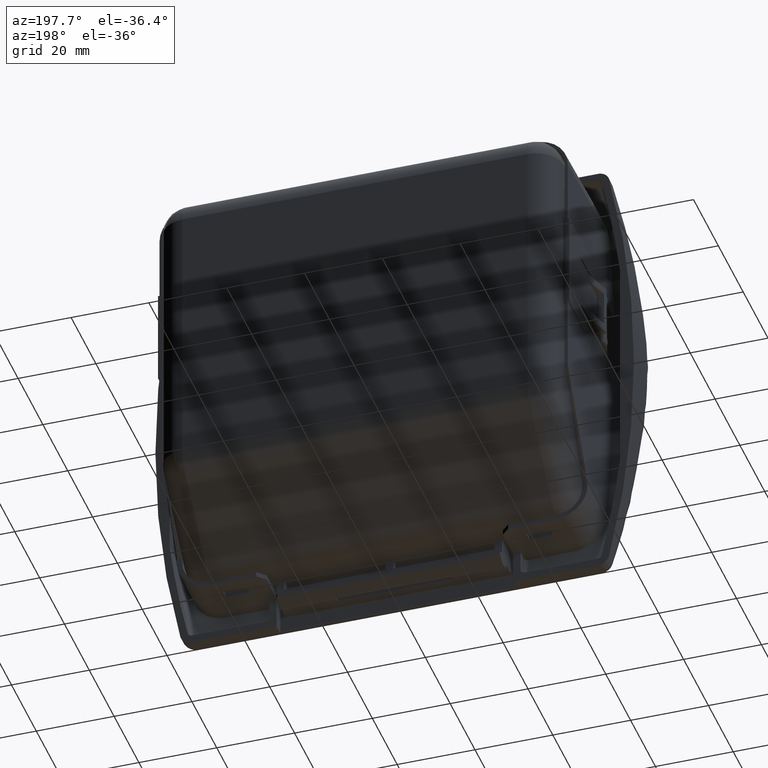
[diagram: clean part render]
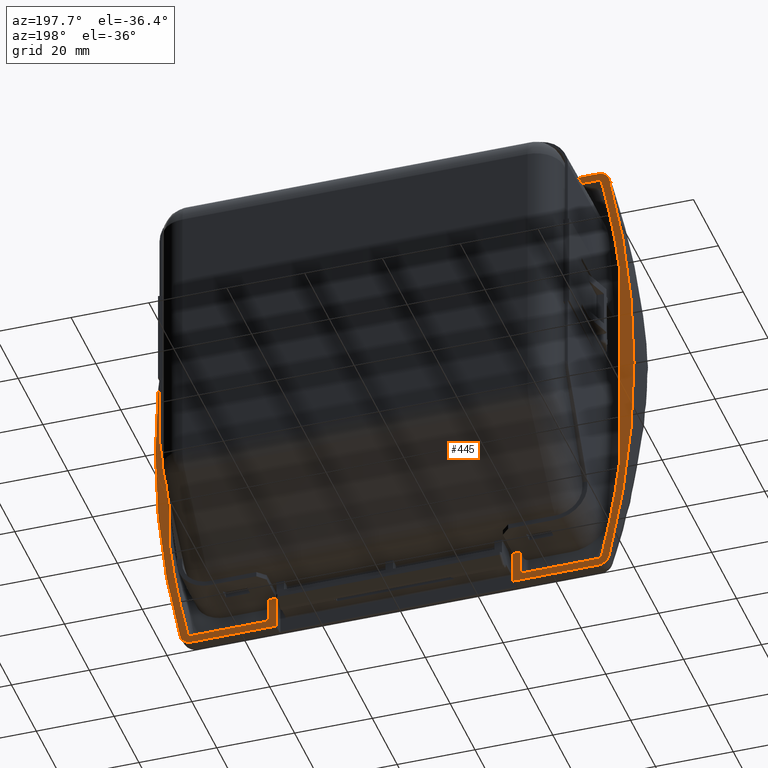
[diagram: same view with one face highlighted and labeled with its STEP entity id]
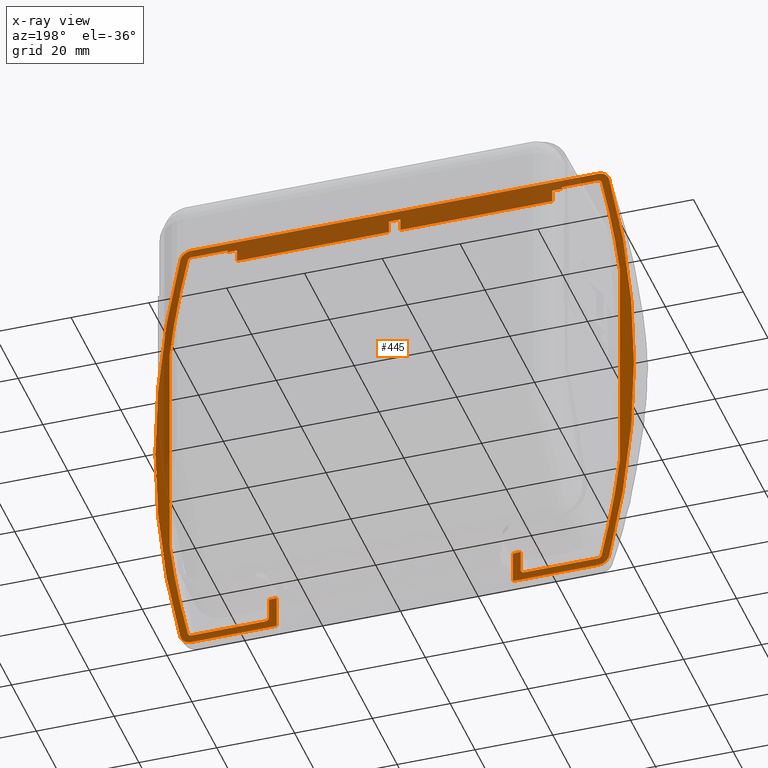
[diagram: x-ray of the same camera — body ghosted, the highlighted face saturated]
A machine part, auxiliary view. The second image highlights one B-rep face of the part: STEP entity #445.
The next image is the same camera in x-ray: the body ghosted, the highlighted face saturated — about 54% of this face is hidden behind the body in this view.
In plain terms, the highlighted planar face has unit normal (0, 1, 0).
Its self-contained STEP definition (entity closure, byte-faithful):
#445=ADVANCED_FACE('',(#3825),#3824,.T.);
#3824=PLANE('',#10314);
#3825=FACE_OUTER_BOUND('',#10315,.T.);
#10311=CARTESIAN_POINT('',(-2.76599449003E+002,0.00000000000E+000,-6.95000000000E+001));
#10312=DIRECTION('',(0.00000000000E+000,1.00000000000E+000,0.00000000000E+000));
#10313=DIRECTION('',(0.00000000000E+000,-0.00000000000E+000,1.00000000000E+000));
#10314=AXIS2_PLACEMENT_3D('',#10311,#10312,#10313);
#10315=EDGE_LOOP('',(#16485,#16486,#16487,#16488,#16489,#16490,#16491,#16492,#16493,#16494,#16495,#16496,#16497,#16498,#16499,#16500,#16501,#16502,#16503,#16504,#16505,#16506,#16507,#16508,#16509,#16510,#16511,#16512,#16513,#16514,#16515,#16516,#16517,#16518,#16519,#16520,#16521,#16522,#16523,#16524,#16525,#16526,#16527,#16528,#16529,#16530));
#16485=ORIENTED_EDGE('',*,*,#19120,.T.);
#16486=ORIENTED_EDGE('',*,*,#19260,.T.);
#16487=ORIENTED_EDGE('',*,*,#19115,.F.);
#16488=ORIENTED_EDGE('',*,*,#19141,.F.);
#16489=ORIENTED_EDGE('',*,*,#19473,.F.);
#16490=ORIENTED_EDGE('',*,*,#19474,.F.);
#16491=ORIENTED_EDGE('',*,*,#19475,.T.);
#16492=ORIENTED_EDGE('',*,*,#19476,.F.);
#16493=ORIENTED_EDGE('',*,*,#19477,.F.);
#16494=ORIENTED_EDGE('',*,*,#19478,.T.);
#16495=ORIENTED_EDGE('',*,*,#19479,.F.);
#16496=ORIENTED_EDGE('',*,*,#19480,.T.);
#16497=ORIENTED_EDGE('',*,*,#19481,.F.);
#16498=ORIENTED_EDGE('',*,*,#19217,.T.);
#16499=ORIENTED_EDGE('',*,*,#19482,.F.);
#16500=ORIENTED_EDGE('',*,*,#19483,.F.);
#16501=ORIENTED_EDGE('',*,*,#19359,.F.);
#16502=ORIENTED_EDGE('',*,*,#19242,.T.);
#16503=ORIENTED_EDGE('',*,*,#19484,.F.);
#16504=ORIENTED_EDGE('',*,*,#19416,.T.);
#16505=ORIENTED_EDGE('',*,*,#19472,.F.);
#16506=ORIENTED_EDGE('',*,*,#19485,.T.);
#16507=ORIENTED_EDGE('',*,*,#19486,.T.);
#16508=ORIENTED_EDGE('',*,*,#19487,.F.);
#16509=ORIENTED_EDGE('',*,*,#19488,.T.);
#16510=ORIENTED_EDGE('',*,*,#19489,.F.);
#16511=ORIENTED_EDGE('',*,*,#19490,.T.);
#16512=ORIENTED_EDGE('',*,*,#19063,.F.);
#16513=ORIENTED_EDGE('',*,*,#19491,.T.);
#16514=ORIENTED_EDGE('',*,*,#19492,.T.);
#16515=ORIENTED_EDGE('',*,*,#19493,.T.);
#16516=ORIENTED_EDGE('',*,*,#19043,.F.);
#16517=ORIENTED_EDGE('',*,*,#19494,.T.);
#16518=ORIENTED_EDGE('',*,*,#19495,.F.);
#16519=ORIENTED_EDGE('',*,*,#19496,.T.);
#16520=ORIENTED_EDGE('',*,*,#19497,.F.);
#16521=ORIENTED_EDGE('',*,*,#19498,.T.);
#16522=ORIENTED_EDGE('',*,*,#19499,.T.);
#16523=ORIENTED_EDGE('',*,*,#19500,.F.);
#16524=ORIENTED_EDGE('',*,*,#19501,.T.);
#16525=ORIENTED_EDGE('',*,*,#19502,.T.);
#16526=ORIENTED_EDGE('',*,*,#19503,.T.);
#16527=ORIENTED_EDGE('',*,*,#19504,.T.);
#16528=ORIENTED_EDGE('',*,*,#19088,.F.);
#16529=ORIENTED_EDGE('',*,*,#19505,.F.);
#16530=ORIENTED_EDGE('',*,*,#19506,.F.);
#19043=EDGE_CURVE('',#23222,#23223,#23224,.T.);
#19063=EDGE_CURVE('',#23354,#23361,#23362,.T.);
#19088=EDGE_CURVE('',#23526,#23533,#23534,.T.);
#19115=EDGE_CURVE('',#23714,#23721,#23722,.T.);
#19120=EDGE_CURVE('',#23755,#23748,#23756,.T.);
#19141=EDGE_CURVE('',#23888,#23714,#23895,.T.);
#19217=EDGE_CURVE('',#24409,#24410,#24411,.T.);
#19242=EDGE_CURVE('',#24581,#24574,#24582,.T.);
#19260=EDGE_CURVE('',#23748,#23721,#24702,.T.);
#19359=EDGE_CURVE('',#24581,#25365,#25366,.T.);
#19416=EDGE_CURVE('',#25744,#25737,#25745,.T.);
#19472=EDGE_CURVE('',#26106,#25737,#26113,.T.);
#19473=EDGE_CURVE('',#26119,#23888,#26120,.T.);
#19474=EDGE_CURVE('',#26126,#26119,#26127,.T.);
#19475=EDGE_CURVE('',#26126,#26133,#26134,.T.);
#19476=EDGE_CURVE('',#26140,#26133,#26141,.T.);
#19477=EDGE_CURVE('',#26147,#26140,#26148,.T.);
#19478=EDGE_CURVE('',#26147,#26154,#26155,.T.);
#19479=EDGE_CURVE('',#26161,#26154,#26162,.T.);
#19480=EDGE_CURVE('',#26161,#26168,#26169,.T.);
#19481=EDGE_CURVE('',#24409,#26168,#26175,.T.);
#19482=EDGE_CURVE('',#26181,#24410,#26182,.T.);
#19483=EDGE_CURVE('',#25365,#26181,#26188,.T.);
#19484=EDGE_CURVE('',#25744,#24574,#26194,.T.);
#19485=EDGE_CURVE('',#26106,#26200,#26201,.T.);
#19486=EDGE_CURVE('',#26200,#26207,#26208,.T.);
#19487=EDGE_CURVE('',#26214,#26207,#26215,.T.);
#19488=EDGE_CURVE('',#26214,#26221,#26222,.T.);
#19489=EDGE_CURVE('',#26228,#26221,#26229,.T.);
#19490=EDGE_CURVE('',#26228,#23361,#26235,.T.);
#19491=EDGE_CURVE('',#23354,#26241,#26242,.T.);
#19492=EDGE_CURVE('',#26241,#26248,#26249,.T.);
#19493=EDGE_CURVE('',#26248,#23223,#26255,.T.);
#19494=EDGE_CURVE('',#23222,#26261,#26262,.T.);
#19495=EDGE_CURVE('',#26268,#26261,#26269,.T.);
#19496=EDGE_CURVE('',#26268,#26275,#26276,.T.);
#19497=EDGE_CURVE('',#26282,#26275,#26283,.T.);
#19498=EDGE_CURVE('',#26282,#26289,#26290,.T.);
#19499=EDGE_CURVE('',#26289,#26296,#26297,.T.);
#19500=EDGE_CURVE('',#26303,#26296,#26304,.T.);
#19501=EDGE_CURVE('',#26303,#26310,#26311,.T.);
#19502=EDGE_CURVE('',#26310,#26317,#26318,.T.);
#19503=EDGE_CURVE('',#26317,#26324,#26325,.T.);
#19504=EDGE_CURVE('',#26324,#23533,#26331,.T.);
#19505=EDGE_CURVE('',#26337,#23526,#26338,.T.);
#19506=EDGE_CURVE('',#23755,#26337,#26344,.T.);
#23222=VERTEX_POINT('',#33989);
#23223=VERTEX_POINT('',#33990);
#23224=CIRCLE('',#33994,1.00000000000E+000);
#23354=VERTEX_POINT('',#34076);
#23361=VERTEX_POINT('',#34080);
#23362=(BOUNDED_CURVE() B_SPLINE_CURVE(2,(#34081,#34082,#34083),.UNSPECIFIED.,.F.,.F.) B_SPLINE_CURVE_WITH_KNOTS((3,3),(4.71238898038E+000,5.94040941946E+000),.UNSPECIFIED.) CURVE() GEOMETRIC_REPRESENTATION_ITEM() RATIONAL_B_SPLINE_CURVE((1.00000000000E+000,8.17344108997E-001,1.00000000000E+000)) REPRESENTATION_ITEM('') );
#23526=VERTEX_POINT('',#34200);
#23533=VERTEX_POINT('',#34205);
#23534=LINE('',#34206,#34207);
#23714=VERTEX_POINT('',#34315);
#23721=VERTEX_POINT('',#34319);
#23722=LINE('',#34320,#34321);
#23748=VERTEX_POINT('',#34336);
#23755=VERTEX_POINT('',#34341);
#23756=LINE('',#34342,#34343);
#23888=VERTEX_POINT('',#34416);
#23895=LINE('',#34420,#34421);
#24409=VERTEX_POINT('',#34793);
#24410=VERTEX_POINT('',#34794);
#24411=CIRCLE('',#34798,1.00000000000E+000);
#24574=VERTEX_POINT('',#34900);
#24581=VERTEX_POINT('',#34904);
#24582=(BOUNDED_CURVE() B_SPLINE_CURVE(2,(#34905,#34906,#34907),.UNSPECIFIED.,.F.,.F.) B_SPLINE_CURVE_WITH_KNOTS((3,3),(4.71238898038E+000,5.94040941946E+000),.UNSPECIFIED.) CURVE() GEOMETRIC_REPRESENTATION_ITEM() RATIONAL_B_SPLINE_CURVE((1.00000000000E+000,8.17344108997E-001,1.00000000000E+000)) REPRESENTATION_ITEM('') );
#24702=LINE('',#34995,#34996);
#25365=VERTEX_POINT('',#35358);
#25366=LINE('',#35359,#35360);
#25737=VERTEX_POINT('',#35563);
#25744=VERTEX_POINT('',#35592);
#25745=(BOUNDED_CURVE() B_SPLINE_CURVE(3,(#35593,#35594,#35595,#35596,#35597,#35598,#35599,#35600,#35601,#35602,#35603,#35604),.UNSPECIFIED.,.F.,.F.) B_SPLINE_CURVE_WITH_KNOTS((4,2,2,2,2,4),(0.00000000000E+000,8.44537996456E-004,1.26680699468E-003,1.68907599291E-003,2.53361398937E-003,3.37815198582E-003),.UNSPECIFIED.) CURVE() GEOMETRIC_REPRESENTATION_ITEM() RATIONAL_B_SPLINE_CURVE((1.00000000000E+000,1.00000000000E+000,1.00000000000E+000,1.00000000000E+000,1.00000000000E+000,1.00000000000E+000,1.00000000000E+000,1.00000000000E+000,1.00000000000E+000,1.00000000000E+000,1.00000000000E+000,1.00000000000E+000)) REPRESENTATION_ITEM('') );
#26106=VERTEX_POINT('',#35868);
#26113=CIRCLE('',#35884,2.60000344491E+002);
#26119=VERTEX_POINT('',#35885);
#26120=LINE('',#35886,#35887);
#26126=VERTEX_POINT('',#35889);
#26127=LINE('',#35890,#35891);
#26133=VERTEX_POINT('',#35893);
#26134=CIRCLE('',#35897,1.00000000000E+000);
#26140=VERTEX_POINT('',#35898);
#26141=CIRCLE('',#35902,2.58000000000E+002);
#26147=VERTEX_POINT('',#35903);
#26148=LINE('',#35904,#35905);
#26154=VERTEX_POINT('',#35907);
#26155=CIRCLE('',#35911,1.00000000000E+000);
#26161=VERTEX_POINT('',#35912);
#26162=CIRCLE('',#35916,2.58000000000E+002);
#26168=VERTEX_POINT('',#35917);
#26169=CIRCLE('',#35921,1.00000000000E+000);
#26175=LINE('',#35922,#35923);
#26181=VERTEX_POINT('',#35925);
#26182=LINE('',#35926,#35927);
#26188=LINE('',#35929,#35930);
#26194=LINE('',#35932,#35933);
#26200=VERTEX_POINT('',#35935);
#26201=(BOUNDED_CURVE() B_SPLINE_CURVE(3,(#35936,#35937,#35938,#35939,#35940,#35941,#35942,#35943,#35944,#35945,#35946,#35947),.UNSPECIFIED.,.F.,.F.) B_SPLINE_CURVE_WITH_KNOTS((4,2,2,2,2,4),(0.00000000000E+000,8.44537994270E-004,1.26680699141E-003,1.68907598854E-003,2.53361398281E-003,3.37815197708E-003),.UNSPECIFIED.) CURVE() GEOMETRIC_REPRESENTATION_ITEM() RATIONAL_B_SPLINE_CURVE((1.00000000000E+000,1.00000000000E+000,1.00000000000E+000,1.00000000000E+000,1.00000000000E+000,1.00000000000E+000,1.00000000000E+000,1.00000000000E+000,1.00000000000E+000,1.00000000000E+000,1.00000000000E+000,1.00000000000E+000)) REPRESENTATION_ITEM('') );
#26207=VERTEX_POINT('',#35948);
#26208=LINE('',#35949,#35950);
#26214=VERTEX_POINT('',#35952);
#26215=(BOUNDED_CURVE() B_SPLINE_CURVE(3,(#35953,#35954,#35955,#35956,#35957,#35958,#35959,#35960,#35961,#35962,#35963,#35964),.UNSPECIFIED.,.F.,.F.) B_SPLINE_CURVE_WITH_KNOTS((4,2,2,2,2,4),(0.00000000000E+000,8.44537994270E-004,1.26680699141E-003,1.68907598854E-003,2.53361398281E-003,3.37815197708E-003),.UNSPECIFIED.) CURVE() GEOMETRIC_REPRESENTATION_ITEM() RATIONAL_B_SPLINE_CURVE((1.00000000000E+000,1.00000000000E+000,1.00000000000E+000,1.00000000000E+000,1.00000000000E+000,1.00000000000E+000,1.00000000000E+000,1.00000000000E+000,1.00000000000E+000,1.00000000000E+000,1.00000000000E+000,1.00000000000E+000)) REPRESENTATION_ITEM('') );
#26221=VERTEX_POINT('',#35965);
#26222=CIRCLE('',#35969,2.60000344491E+002);
#26228=VERTEX_POINT('',#35970);
#26229=(BOUNDED_CURVE() B_SPLINE_CURVE(3,(#35971,#35972,#35973,#35974,#35975,#35976,#35977,#35978,#35979,#35980,#35981,#35982),.UNSPECIFIED.,.F.,.F.) B_SPLINE_CURVE_WITH_KNOTS((4,2,2,2,2,4),(0.00000000000E+000,8.44537996456E-004,1.26680699468E-003,1.68907599291E-003,2.53361398937E-003,3.37815198582E-003),.UNSPECIFIED.) CURVE() GEOMETRIC_REPRESENTATION_ITEM() RATIONAL_B_SPLINE_CURVE((1.00000000000E+000,1.00000000000E+000,1.00000000000E+000,1.00000000000E+000,1.00000000000E+000,1.00000000000E+000,1.00000000000E+000,1.00000000000E+000,1.00000000000E+000,1.00000000000E+000,1.00000000000E+000,1.00000000000E+000)) REPRESENTATION_ITEM('') );
#26235=LINE('',#35983,#35984);
#26241=VERTEX_POINT('',#35986);
#26242=LINE('',#35987,#35988);
#26248=VERTEX_POINT('',#35990);
#26249=LINE('',#35991,#35992);
#26255=LINE('',#35994,#35995);
#26261=VERTEX_POINT('',#35997);
#26262=LINE('',#35998,#35999);
#26268=VERTEX_POINT('',#36001);
#26269=CIRCLE('',#36005,1.00000000000E+000);
#26275=VERTEX_POINT('',#36006);
#26276=CIRCLE('',#36010,2.58000000000E+002);
#26282=VERTEX_POINT('',#36011);
#26283=CIRCLE('',#36015,1.00000000000E+000);
#26289=VERTEX_POINT('',#36016);
#26290=LINE('',#36017,#36018);
#26296=VERTEX_POINT('',#36020);
#26297=CIRCLE('',#36024,2.58000000000E+002);
#26303=VERTEX_POINT('',#36025);
#26304=CIRCLE('',#36029,1.00000000000E+000);
#26310=VERTEX_POINT('',#36030);
#26311=LINE('',#36031,#36032);
#26317=VERTEX_POINT('',#36034);
#26318=LINE('',#36035,#36036);
#26324=VERTEX_POINT('',#36038);
#26325=LINE('',#36039,#36040);
#26331=LINE('',#36042,#36043);
#26337=VERTEX_POINT('',#36045);
#26338=LINE('',#36046,#36047);
#26344=LINE('',#36049,#36050);
#33989=CARTESIAN_POINT('',(-1.65150344491E+002,0.00000000000E+000,-5.74999999999E+001));
#33990=CARTESIAN_POINT('',(-1.66150344491E+002,0.00000000000E+000,-5.64999999999E+001));
#33991=CARTESIAN_POINT('',(-1.65150344491E+002,0.00000000000E+000,-5.64999999999E+001));
#33992=DIRECTION('',(-0.00000000000E+000,1.00000000000E+000,0.00000000000E+000));
#33993=DIRECTION('',(-0.00000000000E+000,-0.00000000000E+000,-1.00000000000E+000));
#33994=AXIS2_PLACEMENT_3D('',#33991,#33992,#33993);
#34076=CARTESIAN_POINT('',(-1.68150344491E+002,0.00000000000E+000,-5.92174093665E+001));
#34080=CARTESIAN_POINT('',(-1.67951175326E+002,0.00000000000E+000,-5.95000000000E+001));
#34081=CARTESIAN_POINT('',(-1.68150344491E+002,0.00000000000E+000,-5.92174093665E+001));
#34082=CARTESIAN_POINT('',(-1.68150344491E+002,0.00000000000E+000,-5.94289130298E+001));
#34083=CARTESIAN_POINT('',(-1.67951175326E+002,0.00000000000E+000,-5.95000000000E+001));
#34200=CARTESIAN_POINT('',(-1.97000344491E+002,-2.44929781709E-014,5.37999999995E+001));
#34205=CARTESIAN_POINT('',(-1.58000344491E+002,-2.44249065418E-014,5.37999999995E+001));
#34206=CARTESIAN_POINT('',(-1.97000344491E+002,0.00000000000E+000,5.37999999995E+001));
#34207=VECTOR('',#34208,3.90000000000E+001);
#34208=DIRECTION('',(1.00000000000E+000,0.00000000000E+000,0.00000000000E+000));
#34315=CARTESIAN_POINT('',(-2.39000344491E+002,-2.44249065418E-014,5.70000000000E+001));
#34319=CARTESIAN_POINT('',(-2.39000344491E+002,-2.44249065418E-014,5.37999999995E+001));
#34320=CARTESIAN_POINT('',(-2.39000344491E+002,-2.44249065418E-014,5.70000000000E+001));
#34321=VECTOR('',#34322,3.20000000051E+000);
#34322=DIRECTION('',(0.00000000000E+000,0.00000000000E+000,-1.00000000000E+000));
#34336=CARTESIAN_POINT('',(-2.00000344491E+002,-2.44929781709E-014,5.37999999995E+001));
#34341=CARTESIAN_POINT('',(-2.00000344491E+002,-2.44929781709E-014,5.70000000000E+001));
#34342=CARTESIAN_POINT('',(-2.00000344491E+002,-2.44929781709E-014,5.70000000000E+001));
#34343=VECTOR('',#34344,3.20000000051E+000);
#34344=DIRECTION('',(0.00000000000E+000,0.00000000000E+000,-1.00000000000E+000));
#34416=CARTESIAN_POINT('',(-2.41500344491E+002,-3.55271367880E-015,5.70000000000E+001));
#34420=CARTESIAN_POINT('',(-2.41500344491E+002,-3.55271367880E-015,5.70000000000E+001));
#34421=VECTOR('',#34422,2.50000000001E+000);
#34422=DIRECTION('',(1.00000000000E+000,0.00000000000E+000,0.00000000000E+000));
#34793=CARTESIAN_POINT('',(-2.31850344491E+002,0.00000000000E+000,-5.74999999999E+001));
#34794=CARTESIAN_POINT('',(-2.30850344491E+002,0.00000000000E+000,-5.64999999999E+001));
#34795=CARTESIAN_POINT('',(-2.31850344491E+002,0.00000000000E+000,-5.64999999999E+001));
#34796=DIRECTION('',(-0.00000000000E+000,-1.00000000000E+000,0.00000000000E+000));
#34797=DIRECTION('',(-0.00000000000E+000,0.00000000000E+000,-1.00000000000E+000));
#34798=AXIS2_PLACEMENT_3D('',#34795,#34796,#34797);
#34900=CARTESIAN_POINT('',(-2.29049513655E+002,0.00000000000E+000,-5.95000000000E+001));
#34904=CARTESIAN_POINT('',(-2.28850344491E+002,0.00000000000E+000,-5.92174093665E+001));
#34905=CARTESIAN_POINT('',(-2.28850344491E+002,0.00000000000E+000,-5.92174093665E+001));
#34906=CARTESIAN_POINT('',(-2.28850344491E+002,0.00000000000E+000,-5.94289130298E+001));
#34907=CARTESIAN_POINT('',(-2.29049513655E+002,0.00000000000E+000,-5.95000000000E+001));
#34995=CARTESIAN_POINT('',(-2.00000344491E+002,0.00000000000E+000,5.37999999995E+001));
#34996=VECTOR('',#34997,3.90000000000E+001);
#34997=DIRECTION('',(-1.00000000000E+000,0.00000000000E+000,0.00000000000E+000));
#35358=CARTESIAN_POINT('',(-2.28850344491E+002,0.00000000000E+000,-5.11018789999E+001));
#35359=CARTESIAN_POINT('',(-2.28850344491E+002,0.00000000000E+000,-5.92174093665E+001));
#35360=VECTOR('',#35361,8.11553036661E+000);
#35361=DIRECTION('',(0.00000000000E+000,0.00000000000E+000,1.00000000000E+000));
#35563=CARTESIAN_POINT('',(-2.53564586830E+002,0.00000000000E+000,-5.74906900402E+001));
#35592=CARTESIAN_POINT('',(-2.51050314390E+002,0.00000000000E+000,-5.95000000000E+001));
#35593=CARTESIAN_POINT('',(-2.51050314390E+002,0.00000000000E+000,-5.95000000000E+001));
#35594=CARTESIAN_POINT('',(-2.51334218168E+002,0.00000000000E+000,-5.94692397507E+001));
#35595=CARTESIAN_POINT('',(-2.51607051269E+002,-0.00000000000E+000,-5.93994813000E+001));
#35596=CARTESIAN_POINT('',(-2.52000075985E+002,-0.00000000000E+000,-5.92376887434E+001));
#35597=CARTESIAN_POINT('',(-2.52128555410E+002,0.00000000000E+000,-5.91737514205E+001));
#35598=CARTESIAN_POINT('',(-2.52371886051E+002,-0.00000000000E+000,-5.90303399792E+001));
#35599=CARTESIAN_POINT('',(-2.52487814338E+002,0.00000000000E+000,-5.89504950004E+001));
#35600=CARTESIAN_POINT('',(-2.52818467509E+002,-0.00000000000E+000,-5.86866549552E+001));
#35601=CARTESIAN_POINT('',(-2.53016278673E+002,0.00000000000E+000,-5.84766468683E+001));
#35602=CARTESIAN_POINT('',(-2.53340746318E+002,-0.00000000000E+000,-5.80165080845E+001));
#35603=CARTESIAN_POINT('',(-2.53471980094E+002,0.00000000000E+000,-5.77608226872E+001));
#35604=CARTESIAN_POINT('',(-2.53564586830E+002,0.00000000000E+000,-5.74906900402E+001));
#35868=CARTESIAN_POINT('',(-2.53564586830E+002,0.00000000000E+000,5.74906900401E+001));
#35881=CARTESIAN_POINT('',(0.00000000000E+000,0.00000000000E+000,0.00000000000E+000));
#35882=DIRECTION('',(0.00000000000E+000,-1.00000000000E+000,-0.00000000000E+000));
#35883=DIRECTION('',(-0.00000000000E+000,-0.00000000000E+000,1.00000000000E+000));
#35884=AXIS2_PLACEMENT_3D('',#35881,#35882,#35883);
#35885=CARTESIAN_POINT('',(-2.41500344491E+002,0.00000000000E+000,5.75000000000E+001));
#35886=CARTESIAN_POINT('',(-2.41500344491E+002,0.00000000000E+000,5.75000000000E+001));
#35887=VECTOR('',#35888,5.00000000000E-001);
#35888=DIRECTION('',(-4.54747350886E-013,0.00000000000E+000,-1.00000000000E+000));
#35889=CARTESIAN_POINT('',(-2.50712484731E+002,0.00000000000E+000,5.75000000000E+001));
#35890=CARTESIAN_POINT('',(-2.50712484731E+002,0.00000000000E+000,5.75000000000E+001));
#35891=VECTOR('',#35892,9.21214023986E+000);
#35892=DIRECTION('',(1.00000000000E+000,0.00000000000E+000,0.00000000000E+000));
#35893=CARTESIAN_POINT('',(-2.51688019691E+002,0.00000000000E+000,5.67198443580E+001));
#35894=CARTESIAN_POINT('',(-2.50712484731E+002,0.00000000000E+000,5.65000000000E+001));
#35895=DIRECTION('',(-0.00000000000E+000,-1.00000000000E+000,0.00000000000E+000));
#35896=DIRECTION('',(-0.00000000000E+000,0.00000000000E+000,-1.00000000000E+000));
#35897=AXIS2_PLACEMENT_3D('',#35894,#35895,#35896);
#35898=CARTESIAN_POINT('',(-2.56350344491E+002,0.00000000000E+000,2.91290384207E+001));
#35899=CARTESIAN_POINT('',(7.59996510169E-011,0.00000000000E+000,0.00000000000E+000));
#35900=DIRECTION('',(0.00000000000E+000,1.00000000000E+000,0.00000000000E+000));
#35901=DIRECTION('',(-0.00000000000E+000,0.00000000000E+000,-1.00000000000E+000));
#35902=AXIS2_PLACEMENT_3D('',#35899,#35900,#35901);
#35903=CARTESIAN_POINT('',(-2.56350344491E+002,0.00000000000E+000,-2.90723505830E+001));
#35904=CARTESIAN_POINT('',(-2.56350344491E+002,0.00000000000E+000,-2.90723505830E+001));
#35905=VECTOR('',#35906,5.82013890038E+001);
#35906=DIRECTION('',(-4.10786449982E-012,0.00000000000E+000,1.00000000000E+000));
#35907=CARTESIAN_POINT('',(-2.56343925598E+002,0.00000000000E+000,-2.91854725697E+001));
#35908=CARTESIAN_POINT('',(-2.55350344491E+002,0.00000000000E+000,-2.90723505830E+001));
#35909=DIRECTION('',(-0.00000000000E+000,-1.00000000000E+000,0.00000000000E+000));
#35910=DIRECTION('',(-0.00000000000E+000,0.00000000000E+000,-1.00000000000E+000));
#35911=AXIS2_PLACEMENT_3D('',#35908,#35909,#35910);
#35912=CARTESIAN_POINT('',(-2.51688019691E+002,0.00000000000E+000,-5.67198443579E+001));
#35913=CARTESIAN_POINT('',(7.59996510169E-011,0.00000000000E+000,0.00000000000E+000));
#35914=DIRECTION('',(0.00000000000E+000,1.00000000000E+000,0.00000000000E+000));
#35915=DIRECTION('',(-0.00000000000E+000,0.00000000000E+000,-1.00000000000E+000));
#35916=AXIS2_PLACEMENT_3D('',#35913,#35914,#35915);
#35917=CARTESIAN_POINT('',(-2.50712484731E+002,0.00000000000E+000,-5.74999999999E+001));
#35918=CARTESIAN_POINT('',(-2.50712484731E+002,0.00000000000E+000,-5.64999999999E+001));
#35919=DIRECTION('',(-0.00000000000E+000,-1.00000000000E+000,0.00000000000E+000));
#35920=DIRECTION('',(-0.00000000000E+000,0.00000000000E+000,-1.00000000000E+000));
#35921=AXIS2_PLACEMENT_3D('',#35918,#35919,#35920);
#35922=CARTESIAN_POINT('',(-2.31850344491E+002,0.00000000000E+000,-5.74999999999E+001));
#35923=VECTOR('',#35924,1.88621402399E+001);
#35924=DIRECTION('',(-1.00000000000E+000,0.00000000000E+000,0.00000000000E+000));
#35925=CARTESIAN_POINT('',(-2.30850344491E+002,1.72556635647E-010,-5.11018789999E+001));
#35926=CARTESIAN_POINT('',(-2.30850344491E+002,0.00000000000E+000,-5.11018789999E+001));
#35927=VECTOR('',#35928,5.39812099999E+000);
#35928=DIRECTION('',(0.00000000000E+000,0.00000000000E+000,-1.00000000000E+000));
#35929=CARTESIAN_POINT('',(-2.28850344491E+002,1.72556635647E-010,-5.11018789999E+001));
#35930=VECTOR('',#35931,2.00000000004E+000);
#35931=DIRECTION('',(-1.00000000000E+000,0.00000000000E+000,0.00000000000E+000));
#35932=CARTESIAN_POINT('',(-2.51050314390E+002,0.00000000000E+000,-5.95000000000E+001));
#35933=VECTOR('',#35934,2.20008007341E+001);
#35934=DIRECTION('',(1.00000000000E+000,0.00000000000E+000,0.00000000000E+000));
#35935=CARTESIAN_POINT('',(-2.51050314389E+002,0.00000000000E+000,5.95000000000E+001));
#35936=CARTESIAN_POINT('',(-2.53564586830E+002,0.00000000000E+000,5.74906900401E+001));
#35937=CARTESIAN_POINT('',(-2.53471980154E+002,-0.00000000000E+000,5.77608225119E+001));
#35938=CARTESIAN_POINT('',(-2.53343776408E+002,-0.00000000000E+000,5.80115573143E+001));
#35939=CARTESIAN_POINT('',(-2.53099300536E+002,-0.00000000000E+000,5.83592307374E+001));
#35940=CARTESIAN_POINT('',(-2.53008606048E+002,0.00000000000E+000,5.84704487818E+001));
#35941=CARTESIAN_POINT('',(-2.52815067875E+002,-0.00000000000E+000,5.86761661042E+001));
#35942=CARTESIAN_POINT('',(-2.52711624952E+002,0.00000000000E+000,5.87716341621E+001));
#35943=CARTESIAN_POINT('',(-2.52381367059E+002,-0.00000000000E+000,5.90359688298E+001));
#35944=CARTESIAN_POINT('',(-2.52132909040E+002,0.00000000000E+000,5.91826019176E+001));
#35945=CARTESIAN_POINT('',(-2.51612548339E+002,-0.00000000000E+000,5.93976174916E+001));
#35946=CARTESIAN_POINT('',(-2.51334218350E+002,-0.00000000000E+000,5.94692397310E+001));
#35947=CARTESIAN_POINT('',(-2.51050314389E+002,0.00000000000E+000,5.95000000000E+001));
#35948=CARTESIAN_POINT('',(-1.45950374593E+002,0.00000000000E+000,5.95000000000E+001));
#35949=CARTESIAN_POINT('',(-2.51050314389E+002,0.00000000000E+000,5.95000000000E+001));
#35950=VECTOR('',#35951,1.05099939796E+002);
#35951=DIRECTION('',(1.00000000000E+000,0.00000000000E+000,6.76063884659E-017));
#35952=CARTESIAN_POINT('',(-1.43436102152E+002,0.00000000000E+000,5.74906900401E+001));
#35953=CARTESIAN_POINT('',(-1.43436102152E+002,0.00000000000E+000,5.74906900401E+001));
#35954=CARTESIAN_POINT('',(-1.43528708828E+002,0.00000000000E+000,5.77608225119E+001));
#35955=CARTESIAN_POINT('',(-1.43656912574E+002,-0.00000000000E+000,5.80115573143E+001));
#35956=CARTESIAN_POINT('',(-1.43901388446E+002,-0.00000000000E+000,5.83592307374E+001));
#35957=CARTESIAN_POINT('',(-1.43992082933E+002,0.00000000000E+000,5.84704487818E+001));
#35958=CARTESIAN_POINT('',(-1.44185621107E+002,-0.00000000000E+000,5.86761661042E+001));
#35959=CARTESIAN_POINT('',(-1.44289064030E+002,0.00000000000E+000,5.87716341621E+001));
#35960=CARTESIAN_POINT('',(-1.44619321923E+002,-0.00000000000E+000,5.90359688298E+001));
#35961=CARTESIAN_POINT('',(-1.44867779942E+002,0.00000000000E+000,5.91826019176E+001));
#35962=CARTESIAN_POINT('',(-1.45388140643E+002,-0.00000000000E+000,5.93976174916E+001));
#35963=CARTESIAN_POINT('',(-1.45666470632E+002,-0.00000000000E+000,5.94692397310E+001));
#35964=CARTESIAN_POINT('',(-1.45950374593E+002,0.00000000000E+000,5.95000000000E+001));
#35965=CARTESIAN_POINT('',(-1.43436102152E+002,0.00000000000E+000,-5.74906900402E+001));
#35966=CARTESIAN_POINT('',(-3.97000688982E+002,0.00000000000E+000,0.00000000000E+000));
#35967=DIRECTION('',(-0.00000000000E+000,1.00000000000E+000,0.00000000000E+000));
#35968=DIRECTION('',(-0.00000000000E+000,-0.00000000000E+000,1.00000000000E+000));
#35969=AXIS2_PLACEMENT_3D('',#35966,#35967,#35968);
#35970=CARTESIAN_POINT('',(-1.45950374592E+002,0.00000000000E+000,-5.95000000000E+001));
#35971=CARTESIAN_POINT('',(-1.45950374592E+002,0.00000000000E+000,-5.95000000000E+001));
#35972=CARTESIAN_POINT('',(-1.45666470814E+002,0.00000000000E+000,-5.94692397507E+001));
#35973=CARTESIAN_POINT('',(-1.45393637713E+002,-0.00000000000E+000,-5.93994813000E+001));
#35974=CARTESIAN_POINT('',(-1.45000612997E+002,-0.00000000000E+000,-5.92376887434E+001));
#35975=CARTESIAN_POINT('',(-1.44872133572E+002,0.00000000000E+000,-5.91737514205E+001));
#35976=CARTESIAN_POINT('',(-1.44628802931E+002,-0.00000000000E+000,-5.90303399792E+001));
#35977=CARTESIAN_POINT('',(-1.44512874644E+002,0.00000000000E+000,-5.89504950004E+001));
#35978=CARTESIAN_POINT('',(-1.44182221473E+002,-0.00000000000E+000,-5.86866549552E+001));
#35979=CARTESIAN_POINT('',(-1.43984410309E+002,0.00000000000E+000,-5.84766468683E+001));
#35980=CARTESIAN_POINT('',(-1.43659942664E+002,-0.00000000000E+000,-5.80165080845E+001));
#35981=CARTESIAN_POINT('',(-1.43528708888E+002,0.00000000000E+000,-5.77608226872E+001));
#35982=CARTESIAN_POINT('',(-1.43436102152E+002,0.00000000000E+000,-5.74906900402E+001));
#35983=CARTESIAN_POINT('',(-1.45950374592E+002,0.00000000000E+000,-5.95000000000E+001));
#35984=VECTOR('',#35985,2.20008007341E+001);
#35985=DIRECTION('',(-1.00000000000E+000,0.00000000000E+000,0.00000000000E+000));
#35986=CARTESIAN_POINT('',(-1.68150344491E+002,0.00000000000E+000,-5.11018789999E+001));
#35987=CARTESIAN_POINT('',(-1.68150344491E+002,0.00000000000E+000,-5.92174093665E+001));
#35988=VECTOR('',#35989,8.11553036661E+000);
#35989=DIRECTION('',(0.00000000000E+000,0.00000000000E+000,1.00000000000E+000));
#35990=CARTESIAN_POINT('',(-1.66150344491E+002,1.72556635647E-010,-5.11018789999E+001));
#35991=CARTESIAN_POINT('',(-1.68150344491E+002,1.72556635647E-010,-5.11018789999E+001));
#35992=VECTOR('',#35993,2.00000000004E+000);
#35993=DIRECTION('',(1.00000000000E+000,0.00000000000E+000,0.00000000000E+000));
#35994=CARTESIAN_POINT('',(-1.66150344491E+002,0.00000000000E+000,-5.11018789999E+001));
#35995=VECTOR('',#35996,5.39812099999E+000);
#35996=DIRECTION('',(0.00000000000E+000,0.00000000000E+000,-1.00000000000E+000));
#35997=CARTESIAN_POINT('',(-1.46288204251E+002,0.00000000000E+000,-5.74999999999E+001));
#35998=CARTESIAN_POINT('',(-1.65150344491E+002,0.00000000000E+000,-5.74999999999E+001));
#35999=VECTOR('',#36000,1.88621402399E+001);
#36000=DIRECTION('',(1.00000000000E+000,0.00000000000E+000,0.00000000000E+000));
#36001=CARTESIAN_POINT('',(-1.45312669291E+002,0.00000000000E+000,-5.67198443579E+001));
#36002=CARTESIAN_POINT('',(-1.46288204251E+002,0.00000000000E+000,-5.64999999999E+001));
#36003=DIRECTION('',(-0.00000000000E+000,1.00000000000E+000,0.00000000000E+000));
#36004=DIRECTION('',(-0.00000000000E+000,-0.00000000000E+000,-1.00000000000E+000));
#36005=AXIS2_PLACEMENT_3D('',#36002,#36003,#36004);
#36006=CARTESIAN_POINT('',(-1.40656763384E+002,0.00000000000E+000,-2.91854725697E+001));
#36007=CARTESIAN_POINT('',(-3.97000688982E+002,0.00000000000E+000,0.00000000000E+000));
#36008=DIRECTION('',(0.00000000000E+000,-1.00000000000E+000,0.00000000000E+000));
#36009=DIRECTION('',(-0.00000000000E+000,-0.00000000000E+000,-1.00000000000E+000));
#36010=AXIS2_PLACEMENT_3D('',#36007,#36008,#36009);
#36011=CARTESIAN_POINT('',(-1.40650344491E+002,0.00000000000E+000,-2.90723505830E+001));
#36012=CARTESIAN_POINT('',(-1.41650344491E+002,0.00000000000E+000,-2.90723505830E+001));
#36013=DIRECTION('',(-0.00000000000E+000,1.00000000000E+000,0.00000000000E+000));
#36014=DIRECTION('',(-0.00000000000E+000,-0.00000000000E+000,-1.00000000000E+000));
#36015=AXIS2_PLACEMENT_3D('',#36012,#36013,#36014);
#36016=CARTESIAN_POINT('',(-1.40650344491E+002,0.00000000000E+000,2.91290384207E+001));
#36017=CARTESIAN_POINT('',(-1.40650344491E+002,0.00000000000E+000,-2.90723505830E+001));
#36018=VECTOR('',#36019,5.82013890038E+001);
#36019=DIRECTION('',(4.10786449982E-012,0.00000000000E+000,1.00000000000E+000));
#36020=CARTESIAN_POINT('',(-1.45312669291E+002,0.00000000000E+000,5.67198443580E+001));
#36021=CARTESIAN_POINT('',(-3.97000688982E+002,0.00000000000E+000,0.00000000000E+000));
#36022=DIRECTION('',(0.00000000000E+000,-1.00000000000E+000,0.00000000000E+000));
#36023=DIRECTION('',(-0.00000000000E+000,-0.00000000000E+000,-1.00000000000E+000));
#36024=AXIS2_PLACEMENT_3D('',#36021,#36022,#36023);
#36025=CARTESIAN_POINT('',(-1.46288204251E+002,0.00000000000E+000,5.75000000000E+001));
#36026=CARTESIAN_POINT('',(-1.46288204251E+002,0.00000000000E+000,5.65000000000E+001));
#36027=DIRECTION('',(-0.00000000000E+000,1.00000000000E+000,0.00000000000E+000));
#36028=DIRECTION('',(-0.00000000000E+000,-0.00000000000E+000,-1.00000000000E+000));
#36029=AXIS2_PLACEMENT_3D('',#36026,#36027,#36028);
#36030=CARTESIAN_POINT('',(-1.55500344491E+002,0.00000000000E+000,5.75000000000E+001));
#36031=CARTESIAN_POINT('',(-1.46288204251E+002,0.00000000000E+000,5.75000000000E+001));
#36032=VECTOR('',#36033,9.21214023986E+000);
#36033=DIRECTION('',(-1.00000000000E+000,0.00000000000E+000,0.00000000000E+000));
#36034=CARTESIAN_POINT('',(-1.55500344491E+002,-3.55271367880E-015,5.70000000000E+001));
#36035=CARTESIAN_POINT('',(-1.55500344491E+002,0.00000000000E+000,5.75000000000E+001));
#36036=VECTOR('',#36037,5.00000000000E-001);
#36037=DIRECTION('',(4.54747350886E-013,0.00000000000E+000,-1.00000000000E+000));
#36038=CARTESIAN_POINT('',(-1.58000344491E+002,-2.44249065418E-014,5.70000000000E+001));
#36039=CARTESIAN_POINT('',(-1.55500344491E+002,-3.55271367880E-015,5.70000000000E+001));
#36040=VECTOR('',#36041,2.50000000001E+000);
#36041=DIRECTION('',(-1.00000000000E+000,0.00000000000E+000,0.00000000000E+000));
#36042=CARTESIAN_POINT('',(-1.58000344491E+002,-2.44249065418E-014,5.70000000000E+001));
#36043=VECTOR('',#36044,3.20000000051E+000);
#36044=DIRECTION('',(0.00000000000E+000,0.00000000000E+000,-1.00000000000E+000));
#36045=CARTESIAN_POINT('',(-1.97000344491E+002,-2.44929781709E-014,5.70000000000E+001));
#36046=CARTESIAN_POINT('',(-1.97000344491E+002,-2.44929781709E-014,5.70000000000E+001));
#36047=VECTOR('',#36048,3.20000000051E+000);
#36048=DIRECTION('',(0.00000000000E+000,0.00000000000E+000,-1.00000000000E+000));
#36049=CARTESIAN_POINT('',(-2.00000344491E+002,-3.55271367880E-015,5.70000000000E+001));
#36050=VECTOR('',#36051,2.99999999995E+000);
#36051=DIRECTION('',(1.00000000000E+000,0.00000000000E+000,0.00000000000E+000));